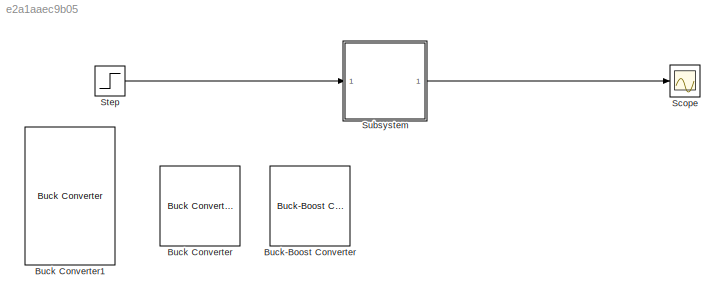
MODEL slx_e2a1aaec9b05
KIND model
CONFIG AbsTol = auto
CONFIG EnableMultiTasking = off
CONFIG FixedStep = auto
CONFIG MaxStep = auto
CONFIG MinStep = auto
CONFIG RelTol = 1e-3
CONFIG SampleTimeConstraint = Unconstrained
CONFIG SolverName = VariableStepAuto
CONFIG StartTime = 0.0
CONFIG StopTime = 10.0
BLOCK [Reference] Buck Converter  REF=ee_lib/Semiconductors &
Converters/Converters/Buck Converter
  SourceBlock = ee_lib/Semiconductors &\nConverters/Converters/Buck Converter
  SourceType = Buck Converter
BLOCK [Reference] Buck Converter1  REF=spsBuckConverterLib/Buck Converter
  LibrarySourceBlock = sps_lib/Power Electronics/Buck Converter
  SourceBlock = spsBuckConverterLib/Buck Converter
  SourceType = Buck Converter
BLOCK [Reference] Buck-Boost Converter  REF=ee_lib/Semiconductors &
Converters/Converters/Buck-Boost Converter
  SourceBlock = ee_lib/Semiconductors &\nConverters/Converters/Buck-Boost Converter
  SourceType = Buck-Boost Converter
BLOCK [Scope] Scope
  Floating = off
  NumInputPorts = 1
  ScopeSpecificationString = Simulink.scopes.TimeScopeBlockCfg('CurrentConfiguration', extmgr.ConfigurationSet(extmgr.Configuration('Core','General UI',true),extmgr.Configuration('Core','Source UI',true),extmgr.Configuration('Sources','WiredSimulink',true),extmgr.Configuration('Visuals','Time Domain',true,'SerializedDisplays',{struct('MinYLimReal','0.17141','MaxYLimReal','1.0919','YLabelReal','','MinYLimMag','0.17141','MaxYLi...<+1354ch>
BLOCK [Step] Step
  SampleTime = 0
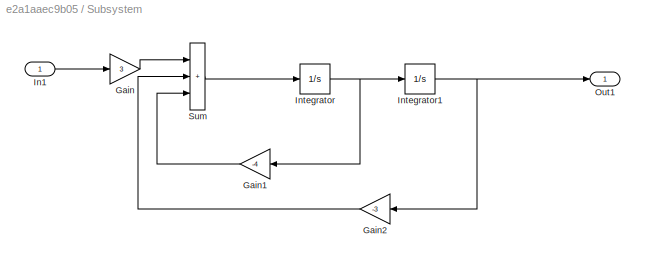
BLOCK [SubSystem] Subsystem
BLOCK [Gain] Subsystem/Gain
  Gain = 3
BLOCK [Gain] Subsystem/Gain1
  Gain = -4
  NameLocation = top
BLOCK [Gain] Subsystem/Gain2
  Gain = -3
  NameLocation = top
BLOCK [Inport] Subsystem/In1
BLOCK [Integrator] Subsystem/Integrator
BLOCK [Integrator] Subsystem/Integrator1
  InitialCondition = 0.5
BLOCK [Outport] Subsystem/Out1
BLOCK [Sum] Subsystem/Sum
  IconShape = rectangular
  Inputs = |+++
LINE Step:1 -> Subsystem:1
LINE Subsystem/Gain1:1 -> Subsystem/Sum:3
LINE Subsystem/Gain2:1 -> Subsystem/Sum:2
LINE Subsystem/Gain:1 -> Subsystem/Sum:1
LINE Subsystem/In1:1 -> Subsystem/Gain:1
NET Subsystem/Integrator1:1 -> Subsystem/Gain2:1, Subsystem/Out1:1
NET Subsystem/Integrator:1 -> Subsystem/Gain1:1, Subsystem/Integrator1:1
LINE Subsystem/Sum:1 -> Subsystem/Integrator:1
LINE Subsystem:1 -> Scope:1
note: NET lines group one-source signal fan-out (src -> all destinations, sorted); 1:1 wires keep LINE
